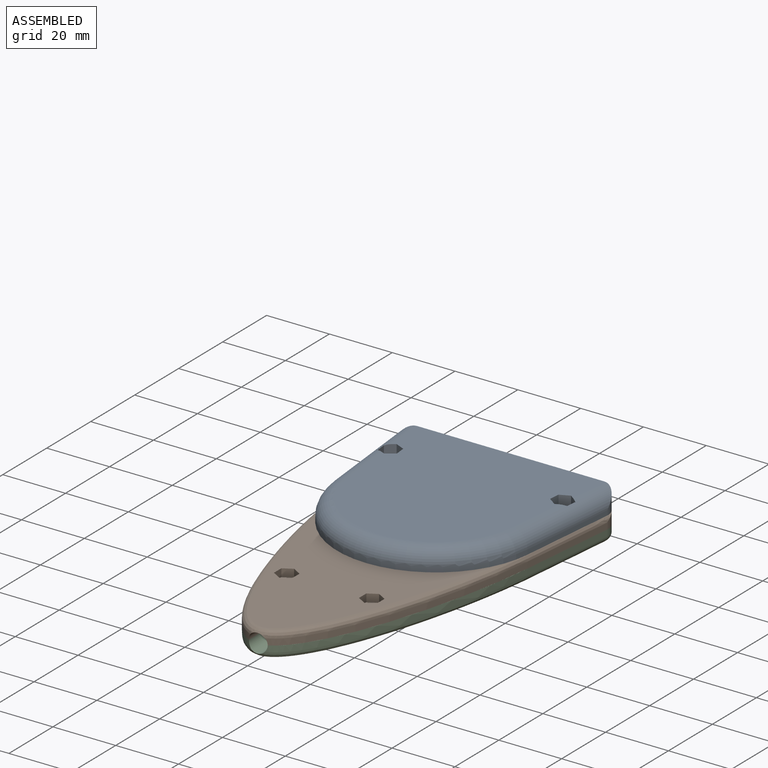
[diagram: assembled view]
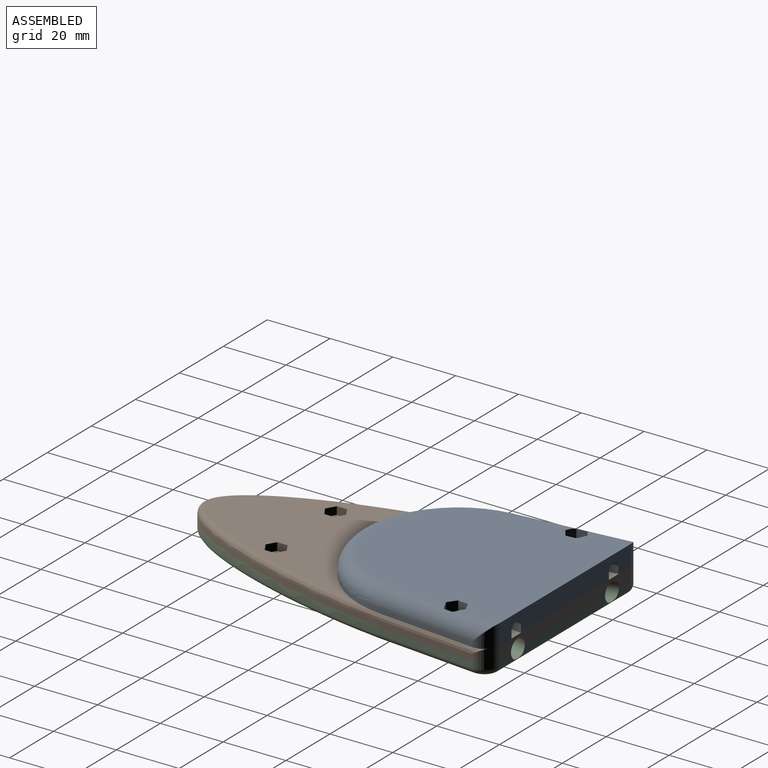
[diagram: assembled view, second angle]
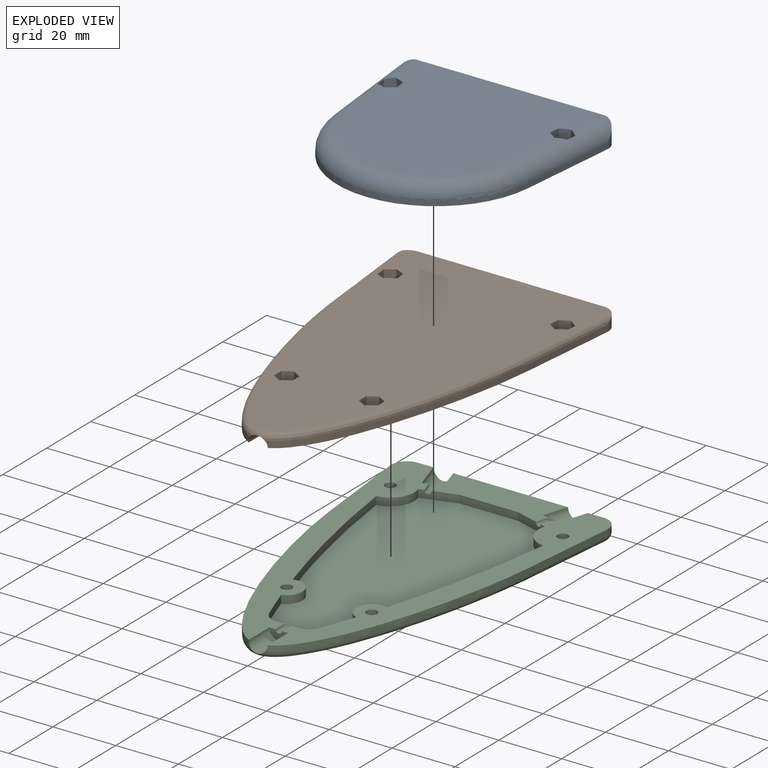
[diagram: exploded view]
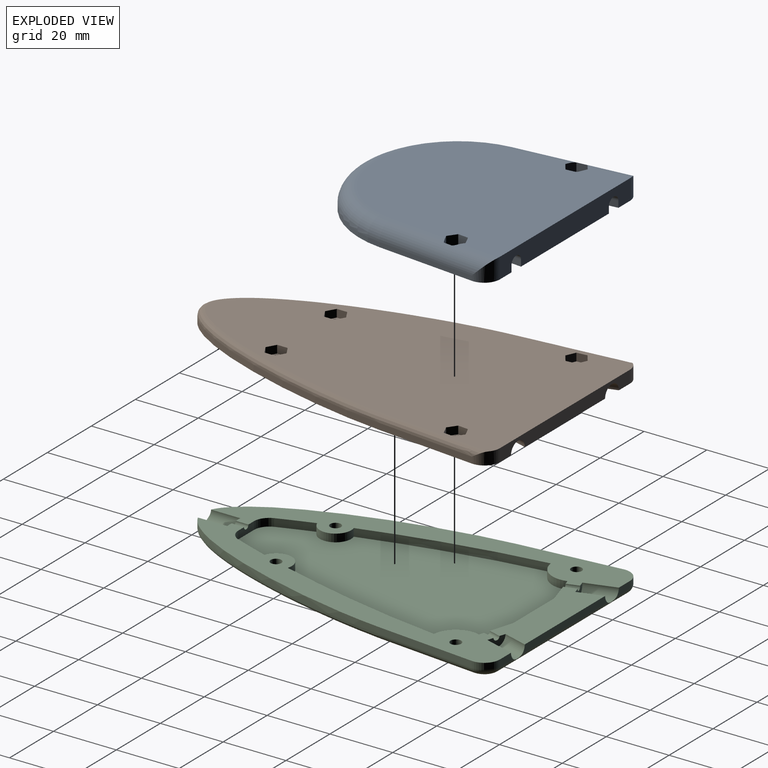
[diagram: exploded view, second angle]
ASSEMBLY  parts=3 mates=6
PART A: 49 faces, bbox 70x68.3x7.7 mm
  f0: plane 60.5x60.1mm, normal (0,0,1), area 2988.7mm2, adj f1,f6,f23,f24,f25,f26,f36,f37
  f1: cylinder r=5mm len=37.12mm, axis (-0.1,-0.99,0), area 266.4mm2, adj f0,f9,f24,f26,f42,f43,f47
  f2: cylinder r=1.65mm len=3.5mm, axis (0,0,-1), area 36.3mm2, adj f4,f48
  f3: cylinder r=1.65mm len=3.5mm, axis (0,0,-1), area 36.3mm2, adj f4,f35
  f4: plane 69.1x65.5mm, normal (0,0,-1), area 1579.9mm2, adj f2,f3,f6,f7,f8,f9,f11,f12
  f5: plane 50.5x40mm, normal (0,0,-1), area 377.5mm2, adj f6,f14,f15,f16,f28,f29,f30,f31
  f6: plane 59.1x6.5mm, normal (0,1,0), area 353mm2, adj f0,f4,f5,f10,f12,f13,f14,f16
  f7: plane 31.65x3.18mm, normal (-0.99,-0.1,0), area 47.7mm2, adj f4,f8,f23,f25
  f8: cylinder r=31.5mm len=62.68mm, axis (0,0,-1), area 139mm2, adj f4,f7,f9,f26
  f9: plane 31.65x3.18mm, normal (0.99,-0.1,0), area 47.7mm2, adj f1,f4,f8,f24
  f10: plane 52.8x44.62mm, normal (0,0,-1), area 38.1mm2, adj f6,f17,f18,f19,f20,f21,f22
  f11: cylinder r=20.8mm len=41.39mm, axis (0,0,1), area 122.4mm2, adj f4,f12,f13,f18
  f12: plane 36.08x3.63mm, normal (-0.99,0.1,0), area 72.5mm2, adj f4,f6,f11,f19
  f13: plane 36.08x3.63mm, normal (0.99,0.1,0), area 72.5mm2, adj f4,f6,f11,f17
  f14: plane 35.65x3.58mm, normal (-0.99,-0.1,0), area 71.7mm2, adj f5,f6,f15,f20
  f15: cylinder r=16.5mm len=32.83mm, axis (0,0,-1), area 97.1mm2, adj f5,f14,f16,f21
  f16: plane 35.65x3.58mm, normal (0.99,-0.1,0), area 71.7mm2, adj f5,f6,f15,f22
  f17: cylinder r=2mm len=36.28mm, axis (-0.1,0.99,0), area 113.7mm2, adj f6,f10,f13,f18
  f18: torus R=18.8mm, axis (0,0,1), area 185.5mm2, adj f10,f11,f17,f19
  f19: cylinder r=2mm len=36.28mm, axis (-0.1,-0.99,0), area 113.7mm2, adj f6,f10,f12,f18
  f20: cylinder r=2mm len=36.05mm, axis (-0.1,0.99,0), area 112.8mm2, adj f6,f10,f14,f21
  f21: torus R=18.5mm, axis (0,0,1), area 159.2mm2, adj f10,f15,f20,f22
  f22: cylinder r=2mm len=36.05mm, axis (-0.1,-0.99,0), area 112.8mm2, adj f6,f10,f16,f21
  f23: cylinder r=5mm len=6.5mm, axis (0,0,-1), area 40mm2, adj f0,f4,f6,f7,f25
  f24: cylinder r=5mm len=6.5mm, axis (0,0,1), area 40mm2, adj f0,f1,f4,f6,f9
  f25: cylinder r=5mm len=37.12mm, axis (-0.1,0.99,0), area 266.4mm2, adj f0,f7,f23,f26,f36,f40,f41
  f26: torus R=26.5mm, axis (0,0,1), area 685.7mm2, adj f0,f1,f8,f25
  f27: plane 45.97x35.41mm, normal (0,0,-1), area 1344.8mm2, adj f28,f32,f33,f34
  f28: plane 35.41x4mm, normal (0,-1,0), area 138.5mm2, adj f5,f27,f29,f31,f32,f34
  f29: plane 32.9x3.31mm, normal (0.99,0.1,0), area 66.1mm2, adj f5,f28,f30,f32
  f30: cylinder r=14mm len=27.86mm, axis (0,0,-1), area 82.4mm2, adj f5,f29,f31,f33
  f31: plane 32.9x3.31mm, normal (-0.99,0.1,0), area 66.1mm2, adj f5,f28,f30,f34
  f32: cylinder r=4.5mm len=32.99mm, axis (-0.1,0.99,0), area 68.6mm2, adj f27,f28,f29,f33
  f33: torus R=18.5mm, axis (0,0,1), area 86.3mm2, adj f27,f30,f32,f34
  f34: cylinder r=4.5mm len=32.99mm, axis (-0.1,-0.99,0), area 68.6mm2, adj f27,f28,f31,f33
  f35: plane 6.67x6.11mm, normal (0,0,1), area 20.6mm2, adj f3,f36,f37,f38,f39,f40,f41
  f36: plane 3.05x3mm, normal (0.41,0.91,0), area 9.8mm2, adj f0,f25,f35,f37,f41
  f37: plane 3x2.72mm, normal (-0.58,0.81,0), area 10mm2, adj f0,f35,f36,f38
  f38: plane 3.33x3mm, normal (-0.99,-0.1,0), area 10mm2, adj f0,f35,f37,f39
  f39: plane 3.05x3mm, normal (-0.41,-0.91,0), area 10mm2, adj f0,f35,f38,f40
  f40: plane 3x2.72mm, normal (0.58,-0.81,0), area 9.8mm2, adj f0,f25,f35,f39,f41
  f41: plane 3.33x2.64mm, normal (0.99,0.1,0), area 8.9mm2, adj f25,f35,f36,f40
  f42: plane 3.33x2.64mm, normal (-0.99,0.1,0), area 8.9mm2, adj f1,f43,f47,f48
  f43: plane 3x2.72mm, normal (-0.58,-0.81,0), area 9.8mm2, adj f0,f1,f42,f44,f48
  f44: plane 3.05x3mm, normal (0.41,-0.91,0), area 10mm2, adj f0,f43,f45,f48
  f45: plane 3.33x3mm, normal (0.99,-0.1,0), area 10mm2, adj f0,f44,f46,f48
  f46: plane 3x2.72mm, normal (0.58,0.81,0), area 10mm2, adj f0,f45,f47,f48
  f47: plane 3.05x3mm, normal (-0.41,0.91,0), area 9.8mm2, adj f0,f1,f42,f46,f48
  f48: plane 6.67x6.11mm, normal (0,0,1), area 20.6mm2, adj f2,f42,f43,f44,f45,f46,f47
PART B: 68 faces, bbox 79x182.5x4.4 mm
  f0: plane 113.5x65.88mm, normal (0,0,-1), area 5266.3mm2, adj f15,f35,f36,f37,f40,f41,f42,f43
  f1: cylinder r=1.7mm len=3.4mm, axis (0,0,1), area 16mm2, adj f12,f67
  f2: cylinder r=1.7mm len=3.4mm, axis (0,0,1), area 16mm2, adj f11,f60
  f3: cylinder r=1.7mm len=3.4mm, axis (0,0,1), area 16mm2, adj f12,f53
  f4: cylinder r=1.7mm len=3.4mm, axis (0,0,1), area 16mm2, adj f11,f46
  f5: plane 91.53x53.21mm, normal (0,0,1), area 3314.8mm2, adj f6,f7,f8,f23,f24,f25,f26,f27
  f6: extruded ~54.62x11.6mm, area 139.8mm2, adj f5,f12,f29,f39
  f7: cylinder r=295.73mm len=11.02mm, axis (0,0,-1), area 29.2mm2, adj f5,f12,f28,f39
  f8: extruded ~54.62x11.6mm, area 139.8mm2, adj f5,f11,f24,f38
  f9: extruded ~77.95x29.11mm, area 169.6mm2, adj f11,f16,f20,f37
  f10: plane 36.53x12.22mm, normal (0,0,1), area 360.3mm2, adj f14,f15,f19,f21,f22,f23,f30,f31
  f11: plane 118.45x35.22mm, normal (0,0,1), area 977.4mm2, adj f2,f4,f8,f9,f13,f14,f15,f16
  f12: plane 118.45x35.22mm, normal (0,0,1), area 977.4mm2, adj f1,f3,f6,f7,f13,f15,f17,f18
  f13: plane 6x3mm, normal (0,-1,0), area 12.6mm2, adj f11,f12,f20,f33
  f14: plane 5.74x3mm, normal (-0.29,0.96,0), area 12.6mm2, adj f10,f11,f22,f34
  f15: plane 59.48x4.39mm, normal (0,1,0), area 206.8mm2, adj f0,f10,f11,f12,f21,f22,f35,f36
  f16: plane 31.65x3.18mm, normal (-0.99,-0.1,0), area 63.6mm2, adj f9,f11,f35,f37
  f17: extruded ~77.95x29.11mm, area 169.6mm2, adj f12,f18,f20,f37
  f18: plane 31.65x3.18mm, normal (0.99,-0.1,0), area 63.6mm2, adj f12,f17,f36,f37
  f19: plane 5.74x3mm, normal (0.29,0.96,0), area 12.6mm2, adj f10,f12,f21,f32
  f20: cylinder r=3mm len=9.6mm, axis (0,1,0), area 89.8mm2, adj f9,f11,f12,f13,f17,f37
  f21: cylinder r=3mm len=11.32mm, axis (0.29,0.96,0), area 85.6mm2, adj f10,f12,f15,f19
  f22: cylinder r=3mm len=11.32mm, axis (-0.29,0.96,0), area 85.6mm2, adj f10,f11,f14,f15
  f23: plane 10.78x3.29mm, normal (0.29,-0.96,0), area 26.6mm2, adj f5,f10,f11,f24,f31,f34
  f24: cylinder r=7.63mm len=9.82mm, axis (0,0,1), area 33.6mm2, adj f5,f8,f11,f23
  f25: cylinder r=295.73mm len=11.02mm, axis (0,0,1), area 29.2mm2, adj f5,f11,f26,f38
  f26: cylinder r=5mm len=5.19mm, axis (0,0,1), area 16.4mm2, adj f5,f11,f25,f27
  f27: plane 5.8x2.5mm, normal (0,1,0), area 12.9mm2, adj f5,f11,f12,f26,f28,f33
  f28: cylinder r=5mm len=5.19mm, axis (0,0,1), area 16.4mm2, adj f5,f7,f12,f27
  f29: cylinder r=7.63mm len=9.82mm, axis (0,0,1), area 33.6mm2, adj f5,f6,f12,f30
  f30: plane 10.78x3.29mm, normal (-0.29,-0.96,0), area 26.6mm2, adj f5,f10,f12,f29,f31,f32
  f31: plane 18.73x2.5mm, normal (0,-1,0), area 46.8mm2, adj f5,f10,f23,f30
  f32: cylinder r=1mm len=4.41mm, axis (0.29,0.96,0), area 12.6mm2, adj f10,f12,f19,f30
  f33: cylinder r=1mm len=4mm, axis (0,-1,0), area 12.6mm2, adj f11,f12,f13,f27
  f34: cylinder r=1mm len=4.41mm, axis (-0.29,0.96,0), area 12.6mm2, adj f10,f11,f14,f23
  f35: cylinder r=5mm len=5.5mm, axis (0,0,-1), area 28.8mm2, adj f0,f11,f15,f16,f37
  f36: cylinder r=5mm len=5.5mm, axis (0,0,1), area 28.8mm2, adj f0,f12,f15,f18,f37
  f37: bspline ~179.13x78.64mm, area 756.6mm2, adj f0,f9,f16,f17,f18,f20,f35,f36
  f38: cylinder r=5mm len=9.76mm, axis (0,0,1), area 39.1mm2, adj f5,f8,f11,f25
  f39: cylinder r=5mm len=9.76mm, axis (0,0,1), area 39.1mm2, adj f5,f6,f7,f12
  f40: plane 3.33x2.5mm, normal (0.99,0.1,0), area 8.4mm2, adj f0,f41,f45,f46
  f41: plane 2.72x2.5mm, normal (0.58,-0.81,0), area 8.4mm2, adj f0,f40,f42,f46
  f42: plane 3.05x2.5mm, normal (-0.41,-0.91,0), area 8.4mm2, adj f0,f41,f43,f46
  f43: plane 3.33x2.5mm, normal (-0.99,-0.1,0), area 8.4mm2, adj f0,f42,f44,f46
  f44: plane 2.72x2.5mm, normal (-0.58,0.81,0), area 8.4mm2, adj f0,f43,f45,f46
  f45: plane 3.05x2.5mm, normal (0.41,0.91,0), area 8.4mm2, adj f0,f40,f44,f46
  f46: plane 6.67x6.11mm, normal (0,0,-1), area 20.1mm2, adj f4,f40,f41,f42,f43,f44,f45
  f47: plane 3.33x2.5mm, normal (-0.99,0.1,0), area 8.4mm2, adj f0,f48,f52,f53
  f48: plane 3.05x2.5mm, normal (-0.41,0.91,0), area 8.4mm2, adj f0,f47,f49,f53
  f49: plane 2.72x2.5mm, normal (0.58,0.81,0), area 8.4mm2, adj f0,f48,f50,f53
  f50: plane 3.33x2.5mm, normal (0.99,-0.1,0), area 8.4mm2, adj f0,f49,f51,f53
  f51: plane 3.05x2.5mm, normal (0.41,-0.91,0), area 8.4mm2, adj f0,f50,f52,f53
  f52: plane 2.72x2.5mm, normal (-0.58,-0.81,0), area 8.4mm2, adj f0,f47,f51,f53
  f53: plane 6.67x6.11mm, normal (0,0,-1), area 20.1mm2, adj f3,f47,f48,f49,f50,f51,f52
  f54: plane 2.9x2.5mm, normal (0.5,-0.87,0), area 8.4mm2, adj f0,f55,f59,f60
  f55: plane 2.9x2.5mm, normal (-0.5,-0.87,0), area 8.4mm2, adj f0,f54,f56,f60
  f56: plane 3.35x2.5mm, normal (-1,0,0), area 8.4mm2, adj f0,f55,f57,f60
  f57: plane 2.9x2.5mm, normal (-0.5,0.87,0), area 8.4mm2, adj f0,f56,f58,f60
  f58: plane 2.9x2.5mm, normal (0.5,0.87,0), area 8.4mm2, adj f0,f57,f59,f60
  f59: plane 3.35x2.5mm, normal (1,0,0), area 8.4mm2, adj f0,f54,f58,f60
  f60: plane 6.7x5.8mm, normal (0,0,-1), area 20.1mm2, adj f2,f54,f55,f56,f57,f58,f59
  f61: plane 3.35x2.5mm, normal (-1,0,0), area 8.4mm2, adj f0,f62,f66,f67
  f62: plane 2.9x2.5mm, normal (-0.5,0.87,0), area 8.4mm2, adj f0,f61,f63,f67
  f63: plane 2.9x2.5mm, normal (0.5,0.87,0), area 8.4mm2, adj f0,f62,f64,f67
  f64: plane 3.35x2.5mm, normal (1,0,0), area 8.4mm2, adj f0,f63,f65,f67
  f65: plane 2.9x2.5mm, normal (0.5,-0.87,0), area 8.4mm2, adj f0,f64,f66,f67
  f66: plane 2.9x2.5mm, normal (-0.5,-0.87,0), area 8.4mm2, adj f0,f61,f65,f67
  f67: plane 6.7x5.8mm, normal (0,0,-1), area 20.1mm2, adj f1,f61,f62,f63,f64,f65,f66
PART C: 55 faces, bbox 74.1x137.9x4.1 mm
  f0: plane 111.5x65.1mm, normal (0,0,-1), area 5101.8mm2, adj f39,f40,f41,f42,f43,f44,f47,f49
  f1: cylinder r=1.7mm len=3.4mm, axis (0,0,1), area 16mm2, adj f14,f54
  f2: cylinder r=1.7mm len=3.4mm, axis (0,0,1), area 16mm2, adj f13,f52
  f3: cylinder r=1.7mm len=3.4mm, axis (0,0,1), area 16mm2, adj f14,f50
  f4: cylinder r=1.7mm len=3.4mm, axis (0,0,1), area 16mm2, adj f13,f48
  f5: plane 91.53x53.21mm, normal (0,0,1), area 3314.8mm2, adj f6,f7,f8,f25,f26,f27,f28,f29
  f6: extruded ~54.62x11.6mm, area 139.8mm2, adj f5,f14,f31,f46
  f7: cylinder r=295.73mm len=11.02mm, axis (0,0,-1), area 29.2mm2, adj f5,f14,f30,f46
  f8: extruded ~54.62x11.6mm, area 139.8mm2, adj f5,f13,f26,f45
  f9: extruded ~77.95x29.11mm, area 169.6mm2, adj f13,f18,f22,f39
  f10: plane 5.92x2.11mm, normal (0,1,0), area 10.5mm2, adj f14,f23,f38,f44
  f11: plane 38.24x2.11mm, normal (0,1,0), area 74.1mm2, adj f12,f23,f24,f44
  f12: plane 36.53x12.22mm, normal (0,0,1), area 360.3mm2, adj f11,f16,f21,f23,f24,f25,f32,f33
  f13: plane 118.45x35.22mm, normal (0,0,1), area 977.4mm2, adj f2,f4,f8,f9,f15,f16,f17,f18
  f14: plane 118.45x35.22mm, normal (0,0,1), area 977.4mm2, adj f1,f3,f6,f7,f10,f15,f19,f20
  f15: plane 6x3mm, normal (0,-1,0), area 12.6mm2, adj f13,f14,f22,f35
  f16: plane 5.74x3mm, normal (-0.29,0.96,0), area 12.6mm2, adj f12,f13,f24,f36
  f17: plane 5.92x2.11mm, normal (0,1,0), area 10.5mm2, adj f13,f24,f37,f44
  f18: plane 31.65x3.18mm, normal (-0.99,-0.1,0), area 63.6mm2, adj f9,f13,f37,f40
  f19: extruded ~77.95x29.11mm, area 169.6mm2, adj f14,f20,f22,f39
  f20: plane 31.65x3.18mm, normal (0.99,-0.1,0), area 63.6mm2, adj f14,f19,f38,f41
  f21: plane 5.74x3mm, normal (0.29,0.96,0), area 12.6mm2, adj f12,f14,f23,f34
  f22: cylinder r=3mm len=9.6mm, axis (0,1,0), area 89.8mm2, adj f9,f13,f14,f15,f19,f39
  f23: cylinder r=3mm len=11.32mm, axis (0.29,0.96,0), area 85.6mm2, adj f10,f11,f12,f14,f21,f44
  f24: cylinder r=3mm len=11.32mm, axis (-0.29,0.96,0), area 85.6mm2, adj f11,f12,f13,f16,f17,f44
  f25: plane 10.78x3.29mm, normal (0.29,-0.96,0), area 26.6mm2, adj f5,f12,f13,f26,f33,f36
  f26: cylinder r=7.63mm len=9.82mm, axis (0,0,1), area 33.6mm2, adj f5,f8,f13,f25
  f27: cylinder r=295.73mm len=11.02mm, axis (0,0,1), area 29.2mm2, adj f5,f13,f28,f45
  f28: cylinder r=5mm len=5.19mm, axis (0,0,1), area 16.4mm2, adj f5,f13,f27,f29
  f29: plane 5.8x2.5mm, normal (0,1,0), area 12.9mm2, adj f5,f13,f14,f28,f30,f35
  f30: cylinder r=5mm len=5.19mm, axis (0,0,1), area 16.4mm2, adj f5,f7,f14,f29
  f31: cylinder r=7.63mm len=9.82mm, axis (0,0,1), area 33.6mm2, adj f5,f6,f14,f32
  f32: plane 10.78x3.29mm, normal (-0.29,-0.96,0), area 26.6mm2, adj f5,f12,f14,f31,f33,f34
  f33: plane 18.73x2.5mm, normal (0,-1,0), area 46.8mm2, adj f5,f12,f25,f32
  f34: cylinder r=1mm len=4.41mm, axis (0.29,0.96,0), area 12.6mm2, adj f12,f14,f21,f32
  f35: cylinder r=1mm len=4mm, axis (0,-1,0), area 12.6mm2, adj f13,f14,f15,f29
  f36: cylinder r=1mm len=4.41mm, axis (-0.29,0.96,0), area 12.6mm2, adj f12,f13,f16,f25
  f37: cylinder r=5mm len=5.5mm, axis (0,0,-1), area 16.7mm2, adj f13,f17,f18,f42
  f38: cylinder r=5mm len=5.5mm, axis (0,0,1), area 16.7mm2, adj f10,f14,f20,f43
  f39: bspline ~134.86x74mm, area 543.3mm2, adj f0,f9,f19,f22,f40,f41
  f40: cylinder r=2mm len=31.85mm, axis (0.1,-0.99,0), area 99.9mm2, adj f0,f18,f39,f42
  f41: cylinder r=2mm len=31.85mm, axis (0.1,0.99,0), area 99.9mm2, adj f0,f20,f39,f43
  f42: torus R=3mm, axis (0,0,1), area 22.4mm2, adj f0,f37,f40,f44
  f43: torus R=3mm, axis (0,0,1), area 22.4mm2, adj f0,f38,f41,f44
  f44: cylinder r=2mm len=59.1mm, axis (-1,0,0), area 179mm2, adj f0,f10,f11,f17,f23,f24,f42,f43
  f45: cylinder r=5mm len=9.76mm, axis (0,0,1), area 39.1mm2, adj f5,f8,f13,f27
  f46: cylinder r=5mm len=9.76mm, axis (0,0,1), area 39.1mm2, adj f5,f6,f7,f14
  f47: cylinder r=3.35mm len=6.7mm, axis (0,0,-1), area 52.6mm2, adj f0,f48
  f48: plane 6.7x6.7mm, normal (0,0,-1), area 26.2mm2, adj f4,f47
  f49: cylinder r=3.35mm len=6.7mm, axis (0,0,-1), area 52.6mm2, adj f0,f50
  f50: plane 6.7x6.7mm, normal (0,0,-1), area 26.2mm2, adj f3,f49
  f51: cylinder r=3.35mm len=6.7mm, axis (0,0,-1), area 52.6mm2, adj f0,f52
  f52: plane 6.7x6.7mm, normal (0,0,-1), area 26.2mm2, adj f2,f51
  f53: cylinder r=3.35mm len=6.7mm, axis (0,0,-1), area 52.6mm2, adj f0,f54
  f54: plane 6.7x6.7mm, normal (0,0,-1), area 26.2mm2, adj f1,f53
PLACE A t=(9.78,71.69,-10.64)mm fixed
PLACE B rot(axis=(0,1,0),180deg) t=(9.78,82.57,-10.64)mm
PLACE C t=(9.78,82.57,-18.64)mm
MATE planar B.f0 <-> A.f24  axis (0,0,1) through (9.78,59.43,-10.64)mm
MATE cylindrical B.f3 <-> A.f3  axis (0,0,1) through (-17.66,90.16,-13.14)mm
MATE cylindrical C.f3 <-> B.f4  axis (0,0,-1) through (37.22,90.16,-18.64)mm
MATE cylindrical C.f4 <-> B.f3  axis (0,0,-1) through (-17.66,90.16,-18.64)mm
MATE planar C.f37 <-> B.f12  axis (0,0,1) through (-19.77,100.69,-14.64)mm
MATE planar B.f15 <-> A.f6  axis (0,1,0) through (9.78,105.69,-12.54)mm
